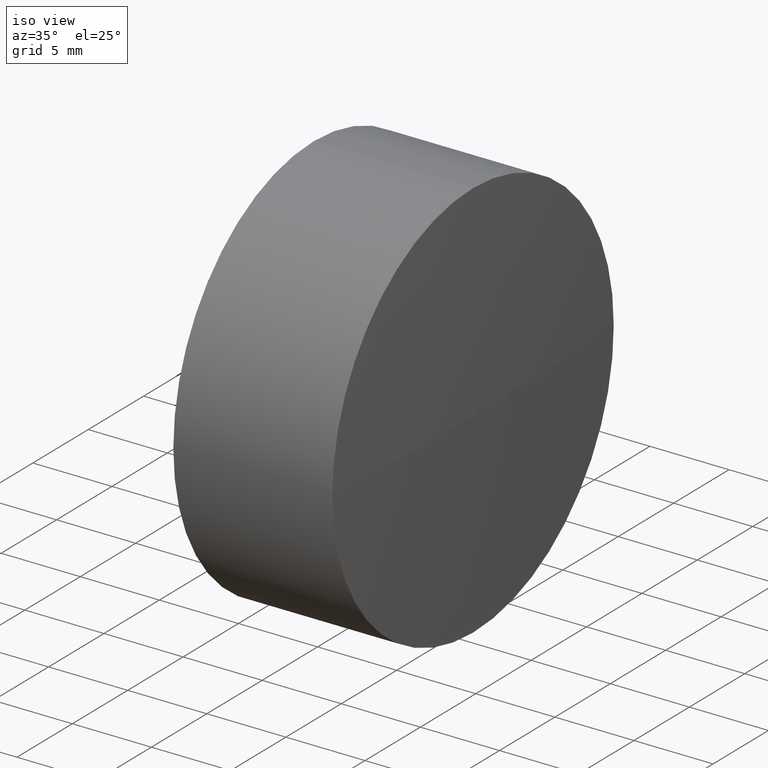
[diagram: clean part render]
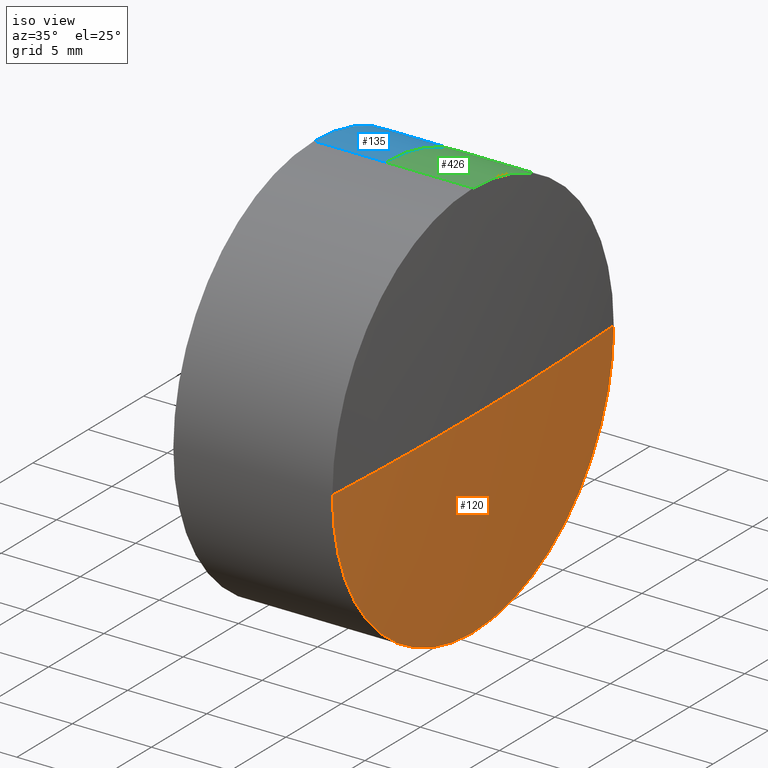
[diagram: same view with three faces highlighted in distinct colors, each labeled with its STEP entity id]
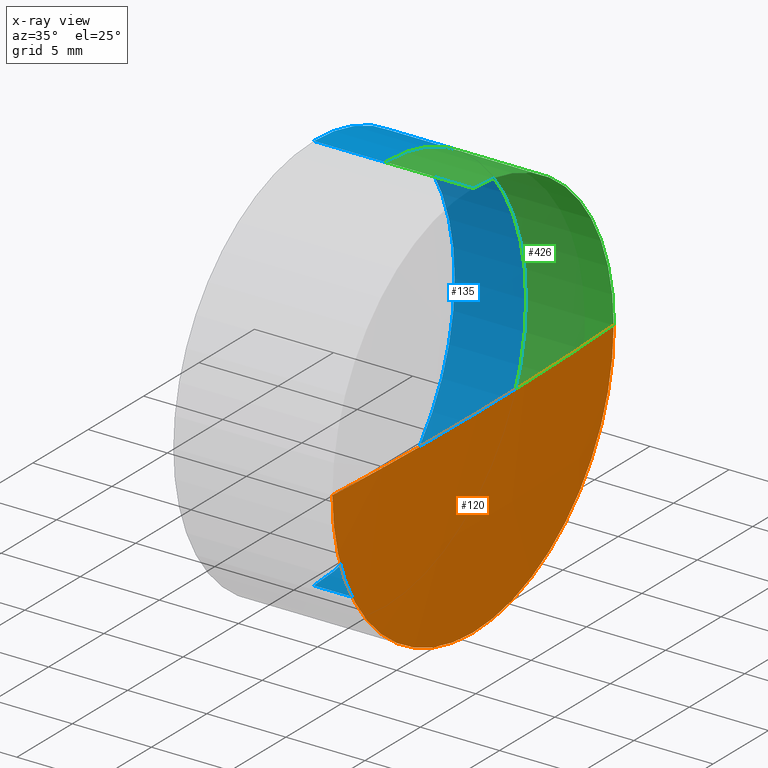
[diagram: x-ray of the same camera — body ghosted, the three highlighted faces saturated]
A machine part, iso view with three faces highlighted in distinct colors.
The next image is the same camera in x-ray (body ghosted, the three faces saturated) — at least one of them is partly hidden behind the body in this view.
Their STEP definitions:

[orange] entity #120 — the highlighted spherical surface has radius 217.37 mm.
#10 = AXIS2_PLACEMENT_3D ( 'NONE', #446, #35, #73 ) ;
#19 = ORIENTED_EDGE ( 'NONE', *, *, #91, .F. ) ;
#35 = DIRECTION ( 'NONE',  ( 0.000000000000000000, 1.224646799147353207E-16, -1.000000000000000000 ) ) ;
#39 = DIRECTION ( 'NONE',  ( -0.000000000000000000, 0.000000000000000000, 1.000000000000000000 ) ) ;
#42 = AXIS2_PLACEMENT_3D ( 'NONE', #62, #437, #172 ) ;
#62 = CARTESIAN_POINT ( 'NONE',  ( -220.7018973328368929, 0.04597092655641990544, 25.39999999999999858 ) ) ;
#67 = CIRCLE ( 'NONE', #320, 12.69999999999999574 ) ;
#69 = CARTESIAN_POINT ( 'NONE',  ( -3.703217843767207196, 0.04597092655642145975, 12.69999999999999929 ) ) ;
#73 = DIRECTION ( 'NONE',  ( 0.000000000000000000, 1.000000000000000000, 1.276881612716976152E-16 ) ) ;
#80 = ORIENTED_EDGE ( 'NONE', *, *, #246, .T. ) ;
#84 = AXIS2_PLACEMENT_3D ( 'NONE', #403, #204, #90 ) ;
#90 = DIRECTION ( 'NONE',  ( 0.000000000000000000, 0.000000000000000000, 1.000000000000000000 ) ) ;
#91 = EDGE_CURVE ( 'NONE', #263, #298, #264, .T. ) ;
#114 = CARTESIAN_POINT ( 'NONE',  ( -3.703217843767205419, 12.74597092655644914, 25.39999999999999858 ) ) ;
#120 = ADVANCED_FACE ( 'NONE', ( #432 ), #370, .T. ) ;
#121 = CARTESIAN_POINT ( 'NONE',  ( -220.7018973328368929, 0.04597092655641990544, 25.39999999999999858 ) ) ;
#133 = DIRECTION ( 'NONE',  ( -1.000000000000000000, -0.000000000000000000, -0.000000000000000000 ) ) ;
#141 = AXIS2_PLACEMENT_3D ( 'NONE', #121, #39, #256 ) ;
#168 = EDGE_CURVE ( 'NONE', #225, #263, #67, .T. ) ;
#172 = DIRECTION ( 'NONE',  ( 0.000000000000000000, 1.000000000000000000, 0.000000000000000000 ) ) ;
#204 = DIRECTION ( 'NONE',  ( -1.000000000000000000, -0.000000000000000000, -0.000000000000000000 ) ) ;
#208 = ORIENTED_EDGE ( 'NONE', *, *, #445, .F. ) ;
#217 = CIRCLE ( 'NONE', #10, 217.3700000000000045 ) ;
#225 = VERTEX_POINT ( 'NONE', #114 ) ;
#243 = CARTESIAN_POINT ( 'NONE',  ( -3.331897332836897263, 0.04597092655643320730, 25.39999999999999858 ) ) ;
#246 = EDGE_CURVE ( 'NONE', #354, #298, #217, .T. ) ;
#256 = DIRECTION ( 'NONE',  ( 1.000000000000000000, 0.000000000000000000, 0.000000000000000000 ) ) ;
#263 = VERTEX_POINT ( 'NONE', #69 ) ;
#264 = CIRCLE ( 'NONE', #84, 12.69999999999999574 ) ;
#267 = DIRECTION ( 'NONE',  ( 0.000000000000000000, 0.000000000000000000, 1.000000000000000000 ) ) ;
#298 = VERTEX_POINT ( 'NONE', #409 ) ;
#300 = CARTESIAN_POINT ( 'NONE',  ( -3.703217843767207196, 0.04597092655641990544, 25.39999999999999858 ) ) ;
#311 = CIRCLE ( 'NONE', #141, 217.3700000000000045 ) ;
#320 = AXIS2_PLACEMENT_3D ( 'NONE', #300, #133, #267 ) ;
#354 = VERTEX_POINT ( 'NONE', #243 ) ;
#370 = SPHERICAL_SURFACE ( 'NONE', #42, 217.3700000000000045 ) ;
#394 = EDGE_LOOP ( 'NONE', ( #208, #80, #19, #441 ) ) ;
#403 = CARTESIAN_POINT ( 'NONE',  ( -3.703217843767207196, 0.04597092655641990544, 25.39999999999999858 ) ) ;
#409 = CARTESIAN_POINT ( 'NONE',  ( -3.703217843767205419, -12.65402907344360983, 25.39999999999999858 ) ) ;
#432 = FACE_OUTER_BOUND ( 'NONE', #394, .T. ) ;
#437 = DIRECTION ( 'NONE',  ( -0.000000000000000000, 0.000000000000000000, -1.000000000000000000 ) ) ;
#441 = ORIENTED_EDGE ( 'NONE', *, *, #168, .F. ) ;
#445 = EDGE_CURVE ( 'NONE', #354, #225, #311, .T. ) ;
#446 = CARTESIAN_POINT ( 'NONE',  ( -220.7018973328368929, 0.04597092655641990544, 25.39999999999999858 ) ) ;

[blue] entity #135 — the highlighted cylindrical surface (partial cylindrical patch) has radius 12.7 mm, axis along (-1, -0, -0).
#4 = AXIS2_PLACEMENT_3D ( 'NONE', #197, #401, #18 ) ;
#7 = CARTESIAN_POINT ( 'NONE',  ( -13.75656378347417785, 0.04597092655642146669, 12.69999999999999929 ) ) ;
#13 = DIRECTION ( 'NONE',  ( -1.000000000000000000, -0.000000000000000000, -0.000000000000000000 ) ) ;
#18 = DIRECTION ( 'NONE',  ( 0.000000000000000000, 0.000000000000000000, 1.000000000000000000 ) ) ;
#22 = VECTOR ( 'NONE', #51, 1000.000000000000000 ) ;
#46 = EDGE_CURVE ( 'NONE', #125, #123, #433, .T. ) ;
#51 = DIRECTION ( 'NONE',  ( -1.000000000000000000, -0.000000000000000000, -0.000000000000000000 ) ) ;
#54 = CARTESIAN_POINT ( 'NONE',  ( -9.233489259202418253, 0.04597092655641990544, 38.09999999999999432 ) ) ;
#58 = CARTESIAN_POINT ( 'NONE',  ( -15.33189733283689016, 0.04597092655641990544, 38.09999999999999432 ) ) ;
#60 = CARTESIAN_POINT ( 'NONE',  ( -13.75656378347417963, 12.74597092655643138, 25.39999999999999858 ) ) ;
#61 = ORIENTED_EDGE ( 'NONE', *, *, #46, .T. ) ;
#63 = EDGE_CURVE ( 'NONE', #125, #203, #303, .T. ) ;
#68 = EDGE_CURVE ( 'NONE', #203, #115, #278, .T. ) ;
#107 = DIRECTION ( 'NONE',  ( -1.000000000000000000, -0.000000000000000000, -0.000000000000000000 ) ) ;
#109 = AXIS2_PLACEMENT_3D ( 'NONE', #200, #13, #270 ) ;
#110 = CARTESIAN_POINT ( 'NONE',  ( -15.33189733283689016, 0.04597092655642146669, 12.69999999999999929 ) ) ;
#111 = CIRCLE ( 'NONE', #359, 12.69999999999999574 ) ;
#115 = VERTEX_POINT ( 'NONE', #60 ) ;
#123 = VERTEX_POINT ( 'NONE', #207 ) ;
#125 = VERTEX_POINT ( 'NONE', #54 ) ;
#134 = ORIENTED_EDGE ( 'NONE', *, *, #277, .T. ) ;
#135 = ADVANCED_FACE ( 'NONE', ( #434 ), #136, .T. ) ;
#136 = CYLINDRICAL_SURFACE ( 'NONE', #109, 12.69999999999999574 ) ;
#149 = CARTESIAN_POINT ( 'NONE',  ( -9.233489259202418253, 0.04597092655641990544, 25.39999999999999858 ) ) ;
#151 = AXIS2_PLACEMENT_3D ( 'NONE', #365, #294, #234 ) ;
#157 = ORIENTED_EDGE ( 'NONE', *, *, #179, .T. ) ;
#169 = AXIS2_PLACEMENT_3D ( 'NONE', #149, #443, #313 ) ;
#173 = EDGE_LOOP ( 'NONE', ( #134, #157, #293, #227, #295, #61 ) ) ;
#179 = EDGE_CURVE ( 'NONE', #230, #387, #215, .T. ) ;
#197 = CARTESIAN_POINT ( 'NONE',  ( -13.75656378347417785, 0.04597092655641990544, 25.39999999999999858 ) ) ;
#200 = CARTESIAN_POINT ( 'NONE',  ( -15.33189733283689016, 0.04597092655641990544, 25.39999999999999858 ) ) ;
#203 = VERTEX_POINT ( 'NONE', #310 ) ;
#207 = CARTESIAN_POINT ( 'NONE',  ( -9.233489259202416477, 12.74597092655641717, 25.39999999999999858 ) ) ;
#215 = LINE ( 'NONE', #110, #289 ) ;
#227 = ORIENTED_EDGE ( 'NONE', *, *, #68, .F. ) ;
#230 = VERTEX_POINT ( 'NONE', #372 ) ;
#234 = DIRECTION ( 'NONE',  ( 0.000000000000000000, 0.000000000000000000, 1.000000000000000000 ) ) ;
#270 = DIRECTION ( 'NONE',  ( 0.000000000000000000, 0.000000000000000000, 1.000000000000000000 ) ) ;
#274 = DIRECTION ( 'NONE',  ( -1.000000000000000000, -0.000000000000000000, -0.000000000000000000 ) ) ;
#277 = EDGE_CURVE ( 'NONE', #123, #230, #376, .T. ) ;
#278 = CIRCLE ( 'NONE', #4, 12.69999999999999574 ) ;
#289 = VECTOR ( 'NONE', #274, 1000.000000000000000 ) ;
#293 = ORIENTED_EDGE ( 'NONE', *, *, #351, .F. ) ;
#294 = DIRECTION ( 'NONE',  ( -1.000000000000000000, -0.000000000000000000, -0.000000000000000000 ) ) ;
#295 = ORIENTED_EDGE ( 'NONE', *, *, #63, .F. ) ;
#303 = LINE ( 'NONE', #58, #22 ) ;
#307 = CARTESIAN_POINT ( 'NONE',  ( -13.75656378347417785, 0.04597092655641990544, 25.39999999999999858 ) ) ;
#310 = CARTESIAN_POINT ( 'NONE',  ( -13.75656378347417785, 0.04597092655641990544, 38.09999999999999432 ) ) ;
#313 = DIRECTION ( 'NONE',  ( 0.000000000000000000, 0.000000000000000000, 1.000000000000000000 ) ) ;
#351 = EDGE_CURVE ( 'NONE', #115, #387, #111, .T. ) ;
#359 = AXIS2_PLACEMENT_3D ( 'NONE', #307, #107, #378 ) ;
#365 = CARTESIAN_POINT ( 'NONE',  ( -9.233489259202418253, 0.04597092655641990544, 25.39999999999999858 ) ) ;
#372 = CARTESIAN_POINT ( 'NONE',  ( -9.233489259202418253, 0.04597092655642146669, 12.69999999999999929 ) ) ;
#376 = CIRCLE ( 'NONE', #169, 12.69999999999999574 ) ;
#378 = DIRECTION ( 'NONE',  ( 0.000000000000000000, 0.000000000000000000, 1.000000000000000000 ) ) ;
#387 = VERTEX_POINT ( 'NONE', #7 ) ;
#401 = DIRECTION ( 'NONE',  ( -1.000000000000000000, -0.000000000000000000, -0.000000000000000000 ) ) ;
#433 = CIRCLE ( 'NONE', #151, 12.69999999999999574 ) ;
#434 = FACE_OUTER_BOUND ( 'NONE', #173, .T. ) ;
#443 = DIRECTION ( 'NONE',  ( -1.000000000000000000, -0.000000000000000000, -0.000000000000000000 ) ) ;

[green] entity #426 — the highlighted cylindrical surface (partial cylindrical patch) has radius 12.7 mm, axis along (-1, -0, -0).
#2 = EDGE_CURVE ( 'NONE', #371, #37, #71, .T. ) ;
#9 = EDGE_LOOP ( 'NONE', ( #392, #427, #104, #17, #11, #327 ) ) ;
#11 = ORIENTED_EDGE ( 'NONE', *, *, #257, .F. ) ;
#17 = ORIENTED_EDGE ( 'NONE', *, *, #2, .F. ) ;
#32 = CARTESIAN_POINT ( 'NONE',  ( -7.331897332836897263, 0.04597092655642145975, 12.69999999999999929 ) ) ;
#34 = VECTOR ( 'NONE', #315, 1000.000000000000000 ) ;
#36 = DIRECTION ( 'NONE',  ( 0.000000000000000000, 0.000000000000000000, 1.000000000000000000 ) ) ;
#37 = VERTEX_POINT ( 'NONE', #129 ) ;
#38 = EDGE_CURVE ( 'NONE', #102, #225, #302, .T. ) ;
#53 = DIRECTION ( 'NONE',  ( -1.000000000000000000, -0.000000000000000000, -0.000000000000000000 ) ) ;
#67 = CIRCLE ( 'NONE', #320, 12.69999999999999574 ) ;
#69 = CARTESIAN_POINT ( 'NONE',  ( -3.703217843767207196, 0.04597092655642145975, 12.69999999999999929 ) ) ;
#71 = CIRCLE ( 'NONE', #112, 12.69999999999999574 ) ;
#72 = DIRECTION ( 'NONE',  ( -1.000000000000000000, -0.000000000000000000, -0.000000000000000000 ) ) ;
#78 = DIRECTION ( 'NONE',  ( -1.000000000000000000, -0.000000000000000000, -0.000000000000000000 ) ) ;
#88 = CARTESIAN_POINT ( 'NONE',  ( -3.703217843767207196, 0.04597092655641990544, 25.39999999999999858 ) ) ;
#89 = DIRECTION ( 'NONE',  ( -1.000000000000000000, -0.000000000000000000, -0.000000000000000000 ) ) ;
#102 = VERTEX_POINT ( 'NONE', #239 ) ;
#104 = ORIENTED_EDGE ( 'NONE', *, *, #355, .F. ) ;
#112 = AXIS2_PLACEMENT_3D ( 'NONE', #364, #53, #428 ) ;
#114 = CARTESIAN_POINT ( 'NONE',  ( -3.703217843767205419, 12.74597092655644914, 25.39999999999999858 ) ) ;
#122 = FACE_OUTER_BOUND ( 'NONE', #9, .T. ) ;
#129 = CARTESIAN_POINT ( 'NONE',  ( -9.233489259202420030, 12.74597092655641717, 25.39999999999999858 ) ) ;
#132 = AXIS2_PLACEMENT_3D ( 'NONE', #212, #72, #144 ) ;
#133 = DIRECTION ( 'NONE',  ( -1.000000000000000000, -0.000000000000000000, -0.000000000000000000 ) ) ;
#144 = DIRECTION ( 'NONE',  ( 0.000000000000000000, 0.000000000000000000, 1.000000000000000000 ) ) ;
#154 = CARTESIAN_POINT ( 'NONE',  ( -7.331897332836897263, 0.04597092655641990544, 25.39999999999999858 ) ) ;
#168 = EDGE_CURVE ( 'NONE', #225, #263, #67, .T. ) ;
#194 = CARTESIAN_POINT ( 'NONE',  ( -9.233489259202423582, 0.04597092655641990544, 38.09999999999999432 ) ) ;
#212 = CARTESIAN_POINT ( 'NONE',  ( -9.233489259202423582, 0.04597092655641990544, 25.39999999999999858 ) ) ;
#224 = EDGE_CURVE ( 'NONE', #263, #280, #345, .T. ) ;
#225 = VERTEX_POINT ( 'NONE', #114 ) ;
#226 = LINE ( 'NONE', #317, #374 ) ;
#228 = DIRECTION ( 'NONE',  ( 0.000000000000000000, 0.000000000000000000, 1.000000000000000000 ) ) ;
#239 = CARTESIAN_POINT ( 'NONE',  ( -3.703217843767207196, 0.04597092655641990544, 38.09999999999999432 ) ) ;
#254 = AXIS2_PLACEMENT_3D ( 'NONE', #154, #78, #36 ) ;
#257 = EDGE_CURVE ( 'NONE', #102, #371, #226, .T. ) ;
#263 = VERTEX_POINT ( 'NONE', #69 ) ;
#267 = DIRECTION ( 'NONE',  ( 0.000000000000000000, 0.000000000000000000, 1.000000000000000000 ) ) ;
#280 = VERTEX_POINT ( 'NONE', #281 ) ;
#281 = CARTESIAN_POINT ( 'NONE',  ( -9.233489259202423582, 0.04597092655642145975, 12.69999999999999929 ) ) ;
#299 = AXIS2_PLACEMENT_3D ( 'NONE', #88, #89, #228 ) ;
#300 = CARTESIAN_POINT ( 'NONE',  ( -3.703217843767207196, 0.04597092655641990544, 25.39999999999999858 ) ) ;
#302 = CIRCLE ( 'NONE', #299, 12.69999999999999574 ) ;
#315 = DIRECTION ( 'NONE',  ( -1.000000000000000000, -0.000000000000000000, -0.000000000000000000 ) ) ;
#317 = CARTESIAN_POINT ( 'NONE',  ( -7.331897332836897263, 0.04597092655641990544, 38.09999999999999432 ) ) ;
#320 = AXIS2_PLACEMENT_3D ( 'NONE', #300, #133, #267 ) ;
#327 = ORIENTED_EDGE ( 'NONE', *, *, #38, .T. ) ;
#345 = LINE ( 'NONE', #32, #34 ) ;
#355 = EDGE_CURVE ( 'NONE', #37, #280, #412, .T. ) ;
#364 = CARTESIAN_POINT ( 'NONE',  ( -9.233489259202423582, 0.04597092655641990544, 25.39999999999999858 ) ) ;
#371 = VERTEX_POINT ( 'NONE', #194 ) ;
#374 = VECTOR ( 'NONE', #417, 1000.000000000000000 ) ;
#384 = CYLINDRICAL_SURFACE ( 'NONE', #254, 12.69999999999999574 ) ;
#392 = ORIENTED_EDGE ( 'NONE', *, *, #168, .T. ) ;
#412 = CIRCLE ( 'NONE', #132, 12.69999999999999574 ) ;
#417 = DIRECTION ( 'NONE',  ( -1.000000000000000000, -0.000000000000000000, -0.000000000000000000 ) ) ;
#426 = ADVANCED_FACE ( 'NONE', ( #122 ), #384, .T. ) ;
#427 = ORIENTED_EDGE ( 'NONE', *, *, #224, .T. ) ;
#428 = DIRECTION ( 'NONE',  ( 0.000000000000000000, 0.000000000000000000, 1.000000000000000000 ) ) ;